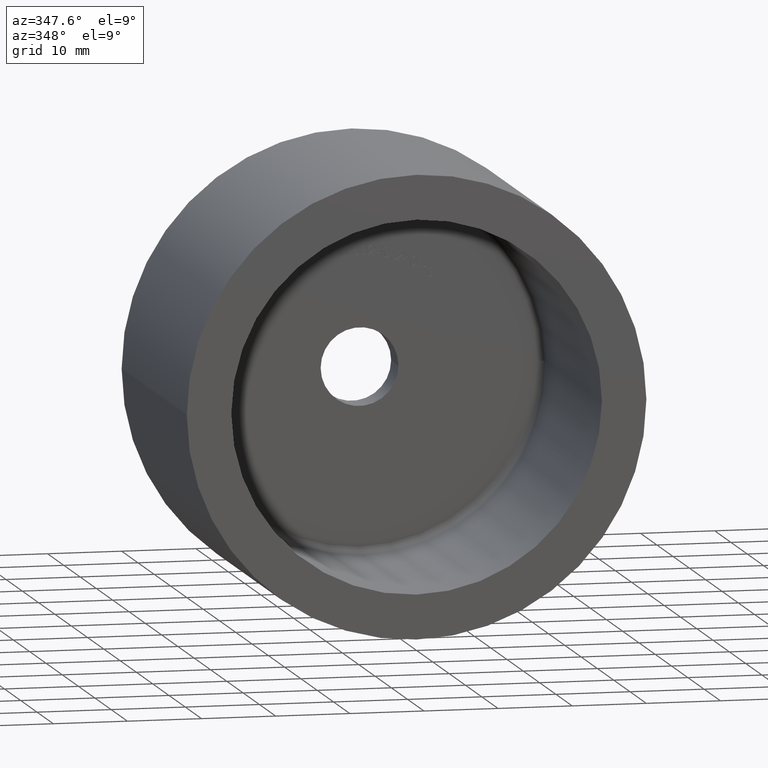
[diagram: clean part render]
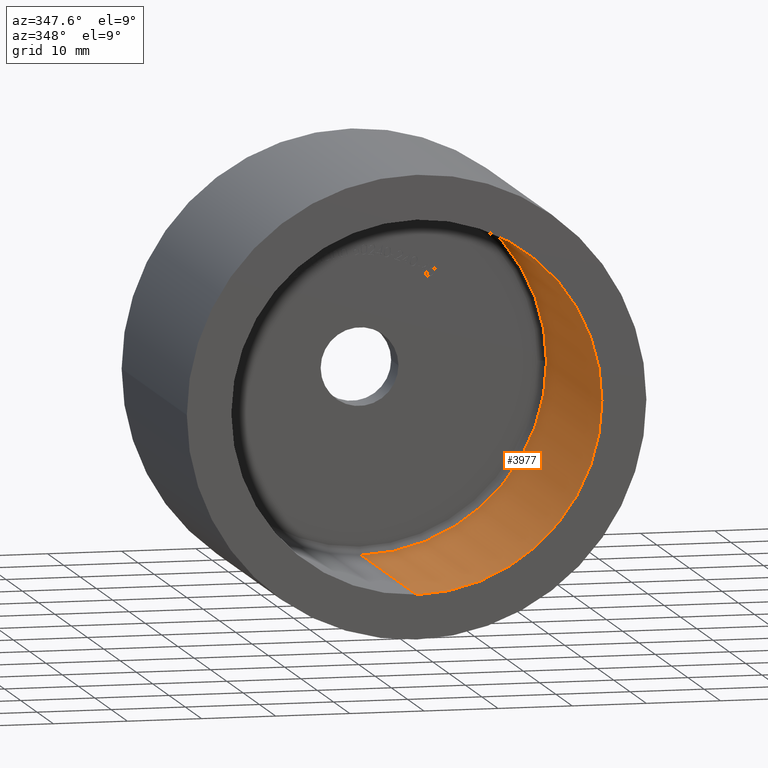
[diagram: same view with one face highlighted and labeled with its STEP entity id]
A machine part, auxiliary view. The second image highlights one B-rep face of the part: STEP entity #3977.
In plain terms, the highlighted cylindrical surface (partial cylindrical patch) has radius 25 mm, axis along (-0, -1, -0).
Its self-contained STEP definition (entity closure, byte-faithful):
#138 = ORIENTED_EDGE ( 'NONE', *, *, #14273, .F. ) ;
#424 = AXIS2_PLACEMENT_3D ( 'NONE', #6503, #6111, #512 ) ;
#512 = DIRECTION ( 'NONE',  ( -1.000000000000000000, 0.000000000000000000, 0.000000000000000000 ) ) ;
#609 = VECTOR ( 'NONE', #2312, 1000.000000000000000 ) ;
#1644 = CIRCLE ( 'NONE', #11172, 25.00000000000000000 ) ;
#1991 = DIRECTION ( 'NONE',  ( 0.000000000000000000, 0.000000000000000000, -1.000000000000000000 ) ) ;
#1997 = DIRECTION ( 'NONE',  ( -0.000000000000000000, -1.000000000000000000, -0.000000000000000000 ) ) ;
#2052 = CARTESIAN_POINT ( 'NONE',  ( 3.061616997868382254E-15, 34.00000000000000000, 25.00000000000000000 ) ) ;
#2068 = VERTEX_POINT ( 'NONE', #6268 ) ;
#2216 = CARTESIAN_POINT ( 'NONE',  ( 3.061616997868382254E-15, 110.7106781186547835, 25.00000000000000000 ) ) ;
#2285 = EDGE_CURVE ( 'NONE', #2287, #7144, #5537, .T. ) ;
#2287 = VERTEX_POINT ( 'NONE', #3869 ) ;
#2312 = DIRECTION ( 'NONE',  ( -0.000000000000000000, -1.000000000000000000, -0.000000000000000000 ) ) ;
#2506 = AXIS2_PLACEMENT_3D ( 'NONE', #8790, #3268, #11082 ) ;
#3123 = EDGE_CURVE ( 'NONE', #6798, #2287, #12567, .T. ) ;
#3268 = DIRECTION ( 'NONE',  ( -8.673617379884035472E-17, 1.000000000000000000, -0.000000000000000000 ) ) ;
#3664 = CARTESIAN_POINT ( 'NONE',  ( 0.000000000000000000, 0.000000000000000000, 0.000000000000000000 ) ) ;
#3869 = CARTESIAN_POINT ( 'NONE',  ( 25.00000000000000000, 34.00000000000000000, 3.061616997868383043E-15 ) ) ;
#3977 = ADVANCED_FACE ( 'NONE', ( #7620 ), #14161, .F. ) ;
#4745 = EDGE_LOOP ( 'NONE', ( #138, #8979, #9986, #10703, #10348 ) ) ;
#5034 = EDGE_CURVE ( 'NONE', #2068, #13819, #1644, .T. ) ;
#5537 = CIRCLE ( 'NONE', #424, 25.00000000000000000 ) ;
#6111 = DIRECTION ( 'NONE',  ( -8.673617379884035472E-17, 1.000000000000000000, -0.000000000000000000 ) ) ;
#6268 = CARTESIAN_POINT ( 'NONE',  ( 0.000000000000000000, 0.000000000000000000, -25.00000000000000000 ) ) ;
#6503 = CARTESIAN_POINT ( 'NONE',  ( 0.000000000000000000, 34.00000000000000000, 0.000000000000000000 ) ) ;
#6798 = VERTEX_POINT ( 'NONE', #2052 ) ;
#7124 = AXIS2_PLACEMENT_3D ( 'NONE', #8687, #8783, #1991 ) ;
#7144 = VERTEX_POINT ( 'NONE', #11600 ) ;
#7620 = FACE_OUTER_BOUND ( 'NONE', #4745, .T. ) ;
#8687 = CARTESIAN_POINT ( 'NONE',  ( 0.000000000000000000, 110.7106781186547835, 0.000000000000000000 ) ) ;
#8783 = DIRECTION ( 'NONE',  ( -0.000000000000000000, -1.000000000000000000, -0.000000000000000000 ) ) ;
#8790 = CARTESIAN_POINT ( 'NONE',  ( 0.000000000000000000, 34.00000000000000000, 0.000000000000000000 ) ) ;
#8979 = ORIENTED_EDGE ( 'NONE', *, *, #3123, .T. ) ;
#9986 = ORIENTED_EDGE ( 'NONE', *, *, #2285, .T. ) ;
#10348 = ORIENTED_EDGE ( 'NONE', *, *, #5034, .T. ) ;
#10487 = DIRECTION ( 'NONE',  ( 0.000000000000000000, 0.000000000000000000, -1.000000000000000000 ) ) ;
#10703 = ORIENTED_EDGE ( 'NONE', *, *, #11111, .T. ) ;
#10833 = CARTESIAN_POINT ( 'NONE',  ( 3.061616997868382254E-15, 0.000000000000000000, 25.00000000000000000 ) ) ;
#11082 = DIRECTION ( 'NONE',  ( -1.000000000000000000, 0.000000000000000000, 0.000000000000000000 ) ) ;
#11111 = EDGE_CURVE ( 'NONE', #7144, #2068, #12726, .T. ) ;
#11169 = LINE ( 'NONE', #2216, #609 ) ;
#11172 = AXIS2_PLACEMENT_3D ( 'NONE', #3664, #11521, #10487 ) ;
#11521 = DIRECTION ( 'NONE',  ( 0.000000000000000000, -1.000000000000000000, 0.000000000000000000 ) ) ;
#11600 = CARTESIAN_POINT ( 'NONE',  ( 0.000000000000000000, 34.00000000000000000, -25.00000000000000000 ) ) ;
#12567 = CIRCLE ( 'NONE', #2506, 25.00000000000000000 ) ;
#12726 = LINE ( 'NONE', #13250, #13423 ) ;
#13250 = CARTESIAN_POINT ( 'NONE',  ( 0.000000000000000000, 110.7106781186547835, -25.00000000000000000 ) ) ;
#13423 = VECTOR ( 'NONE', #1997, 1000.000000000000000 ) ;
#13819 = VERTEX_POINT ( 'NONE', #10833 ) ;
#14161 = CYLINDRICAL_SURFACE ( 'NONE', #7124, 25.00000000000000000 ) ;
#14273 = EDGE_CURVE ( 'NONE', #6798, #13819, #11169, .T. ) ;